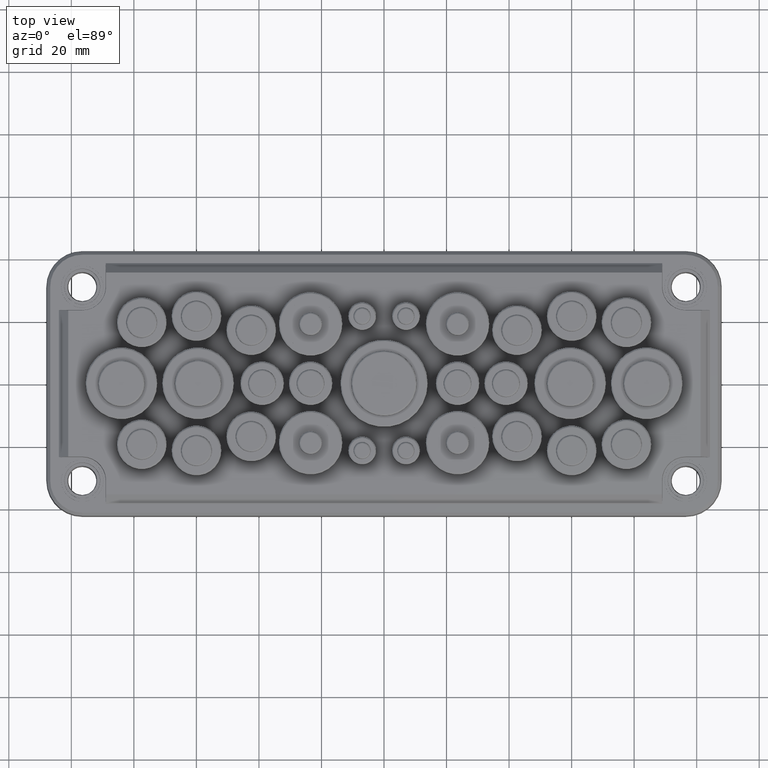
[diagram: clean part render]
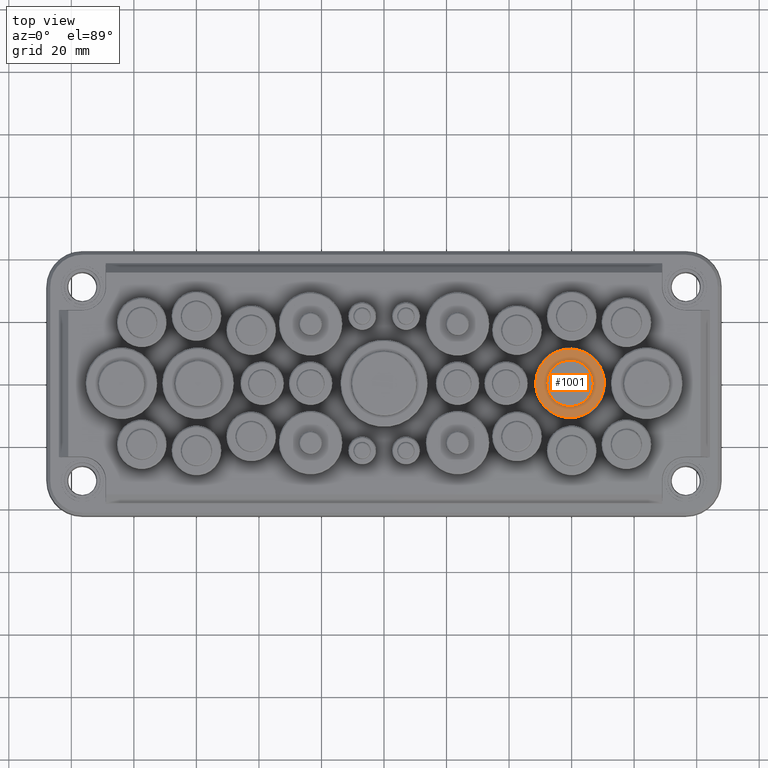
[diagram: same view with one face highlighted and labeled with its STEP entity id]
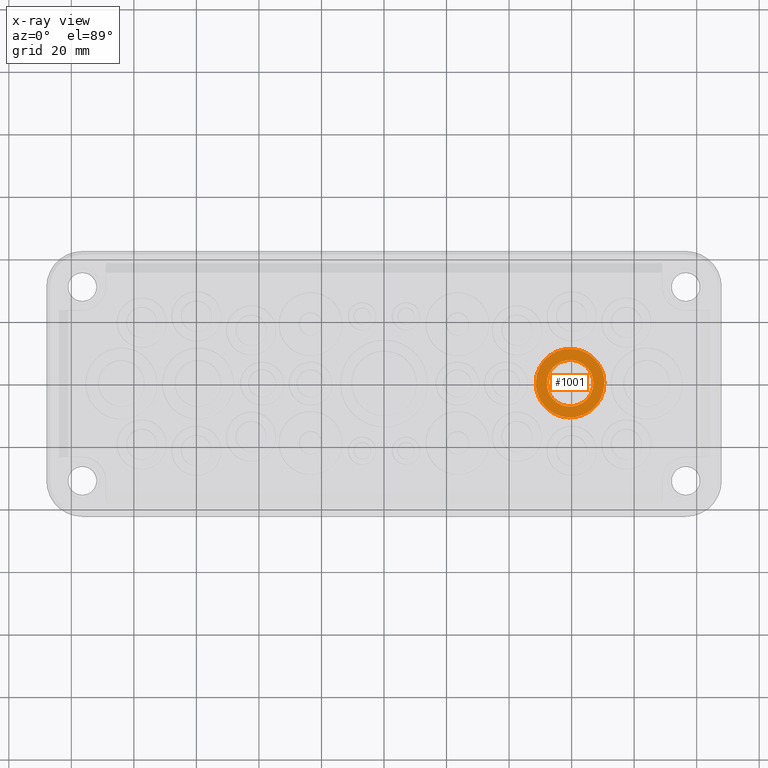
[diagram: x-ray of the same camera — body ghosted, the highlighted face saturated]
A machine part, top view. The second image highlights one B-rep face of the part: STEP entity #1001.
The next image is the same camera in x-ray: the body ghosted, the highlighted face saturated — about 0% of this face is hidden behind the body in this view.
In plain terms, the highlighted planar face has unit normal (0, 0, 1).
Its self-contained STEP definition (entity closure, byte-faithful):
#214 = VERTEX_POINT ( 'NONE', #20981 ) ;
#1001 = ADVANCED_FACE ( 'NONE', ( #14083, #34090 ), #40040, .T. ) ;
#1146 = CARTESIAN_POINT ( 'NONE',  ( 48.54371382634252500, -21.91257234731497400, 14.00000000000000000 ) ) ;
#1342 = CARTESIAN_POINT ( 'NONE',  ( 48.54371382634251800, -4.894427445056225100E-015, 14.00000000000000000 ) ) ;
#1968 = DIRECTION ( 'NONE',  ( -1.000000000000000000, 0.0000000000000000000, 0.0000000000000000000 ) ) ;
#3549 = EDGE_CURVE ( 'NONE', #21755, #214, #40073, .T. ) ;
#4946 = CARTESIAN_POINT ( 'NONE',  ( 70.45628617365750300, -2.881834639144898900E-015, 14.00000000000000000 ) ) ;
#7056 = DIRECTION ( 'NONE',  ( -1.000000000000000000, 0.0000000000000000000, 0.0000000000000000000 ) ) ;
#7244 =( BOUNDED_CURVE ( )  B_SPLINE_CURVE ( 3, ( #28798, #39105, #1146, #28506 ),
 .UNSPECIFIED., .F., .F. ) 
 B_SPLINE_CURVE_WITH_KNOTS ( ( 4, 4 ),
 ( 0.0000000000000000000, 0.5000000000000000000 ),
 .UNSPECIFIED. ) 
 CURVE ( )  GEOMETRIC_REPRESENTATION_ITEM ( )  RATIONAL_B_SPLINE_CURVE ( ( 1.000000000000000000, 0.3333333333333333700, 0.3333333333333333700, 1.000000000000000000 ) ) 
 REPRESENTATION_ITEM ( '' )  );
#7732 = CARTESIAN_POINT ( 'NONE',  ( 52.05236519478467700, -3.552713678800500900E-015, 14.00000000000001200 ) ) ;
#7755 = EDGE_LOOP ( 'NONE', ( #11651, #31486 ) ) ;
#7989 = EDGE_CURVE ( 'NONE', #21492, #20377, #19534, .T. ) ;
#10538 = CIRCLE ( 'NONE', #44795, 7.447634805215333400 ) ;
#11436 = CARTESIAN_POINT ( 'NONE',  ( 70.45628617365748900, 21.91257234731496700, 14.00000000000000000 ) ) ;
#11651 = ORIENTED_EDGE ( 'NONE', *, *, #13020, .T. ) ;
#11997 = EDGE_LOOP ( 'NONE', ( #12143, #34324 ) ) ;
#12143 = ORIENTED_EDGE ( 'NONE', *, *, #3549, .F. ) ;
#13020 = EDGE_CURVE ( 'NONE', #20377, #21492, #10538, .T. ) ;
#14083 = FACE_OUTER_BOUND ( 'NONE', #11997, .T. ) ;
#17301 = CARTESIAN_POINT ( 'NONE',  ( 59.50000000000001400, -3.552713678800500900E-015, 14.00000000000001200 ) ) ;
#18853 = DIRECTION ( 'NONE',  ( 0.0000000000000000000, 0.0000000000000000000, 1.000000000000000000 ) ) ;
#19008 = CARTESIAN_POINT ( 'NONE',  ( 59.50000000000001400, -3.552713678800500900E-015, 14.00000000000001200 ) ) ;
#19534 = CIRCLE ( 'NONE', #32703, 7.447634805215333400 ) ;
#20377 = VERTEX_POINT ( 'NONE', #7732 ) ;
#20981 = CARTESIAN_POINT ( 'NONE',  ( 70.45628617365750300, -2.881834639144898900E-015, 14.00000000000000000 ) ) ;
#21492 = VERTEX_POINT ( 'NONE', #40849 ) ;
#21755 = VERTEX_POINT ( 'NONE', #1342 ) ;
#25162 = CARTESIAN_POINT ( 'NONE',  ( 48.54371382634251800, -4.894427445056225100E-015, 14.00000000000000000 ) ) ;
#27265 = EDGE_CURVE ( 'NONE', #214, #21755, #7244, .T. ) ;
#28506 = CARTESIAN_POINT ( 'NONE',  ( 48.54371382634251800, -4.894427445056225100E-015, 14.00000000000000000 ) ) ;
#28798 = CARTESIAN_POINT ( 'NONE',  ( 70.45628617365750300, -2.881834639144898900E-015, 14.00000000000000000 ) ) ;
#31486 = ORIENTED_EDGE ( 'NONE', *, *, #7989, .T. ) ;
#32133 = CARTESIAN_POINT ( 'NONE',  ( 48.54371382634252500, 21.91257234731496700, 14.00000000000000000 ) ) ;
#32703 = AXIS2_PLACEMENT_3D ( 'NONE', #19008, #36700, #1968 ) ;
#33863 = AXIS2_PLACEMENT_3D ( 'NONE', #36090, #18853, #42926 ) ;
#34090 = FACE_BOUND ( 'NONE', #7755, .T. ) ;
#34324 = ORIENTED_EDGE ( 'NONE', *, *, #27265, .F. ) ;
#36090 = CARTESIAN_POINT ( 'NONE',  ( 71.00000000000001400, -3.552713678800500900E-015, 14.00000000000000000 ) ) ;
#36700 = DIRECTION ( 'NONE',  ( -0.0000000000000000000, -0.0000000000000000000, -1.000000000000000000 ) ) ;
#38179 = DIRECTION ( 'NONE',  ( -0.0000000000000000000, -0.0000000000000000000, -1.000000000000000000 ) ) ;
#39105 = CARTESIAN_POINT ( 'NONE',  ( 70.45628617365748900, -21.91257234731497400, 14.00000000000000000 ) ) ;
#40040 = PLANE ( 'NONE',  #33863 ) ;
#40073 =( BOUNDED_CURVE ( )  B_SPLINE_CURVE ( 3, ( #25162, #32133, #11436, #4946 ),
 .UNSPECIFIED., .F., .F. ) 
 B_SPLINE_CURVE_WITH_KNOTS ( ( 4, 4 ),
 ( 0.5000000000000000000, 1.000000000000000000 ),
 .UNSPECIFIED. ) 
 CURVE ( )  GEOMETRIC_REPRESENTATION_ITEM ( )  RATIONAL_B_SPLINE_CURVE ( ( 1.000000000000000000, 0.3333333333333333700, 0.3333333333333333700, 1.000000000000000000 ) ) 
 REPRESENTATION_ITEM ( '' )  );
#40849 = CARTESIAN_POINT ( 'NONE',  ( 66.94763480521534400, -2.640641466257963300E-015, 14.00000000000001200 ) ) ;
#42926 = DIRECTION ( 'NONE',  ( 1.000000000000000000, 0.0000000000000000000, -0.0000000000000000000 ) ) ;
#44795 = AXIS2_PLACEMENT_3D ( 'NONE', #17301, #38179, #7056 ) ;